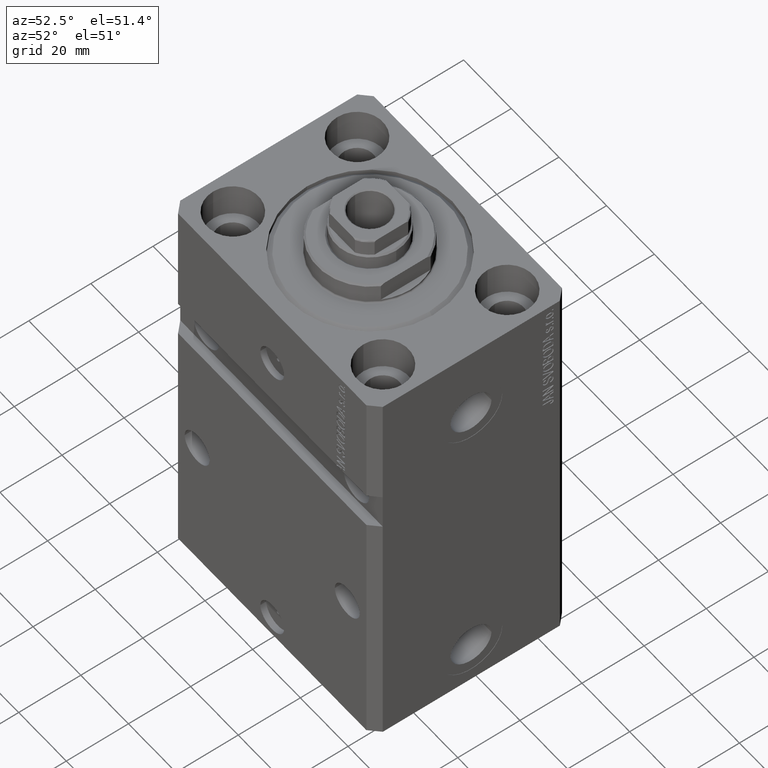
[diagram: clean part render]
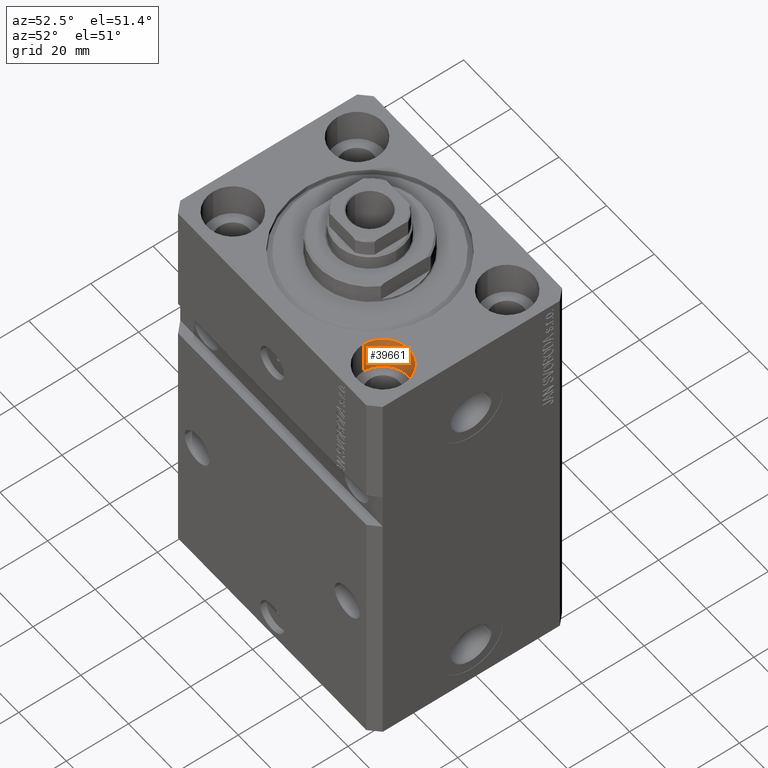
[diagram: same view with one face highlighted and labeled with its STEP entity id]
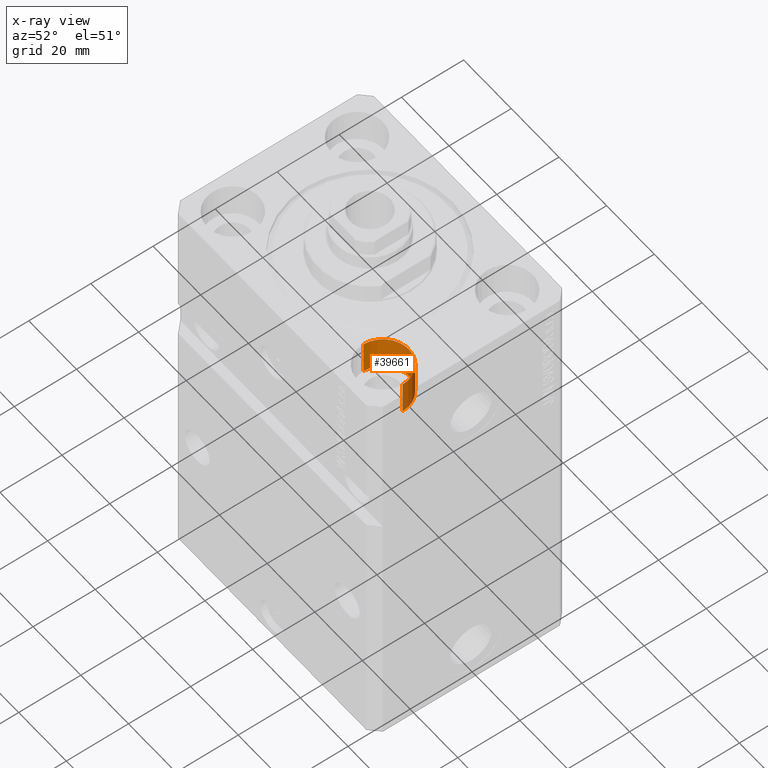
[diagram: x-ray of the same camera — body ghosted, the highlighted face saturated]
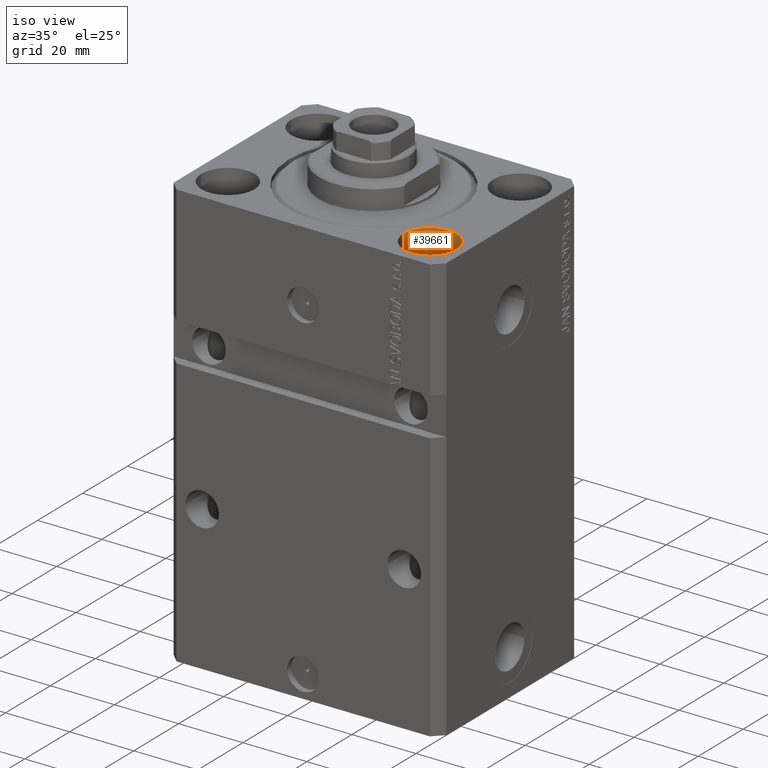
[diagram: same view with one face highlighted and labeled with its STEP entity id]
A machine part, auxiliary view. The second image highlights one B-rep face of the part: STEP entity #39661.
The next image is the same camera in x-ray: the body ghosted, the highlighted face saturated — about 0% of this face is hidden behind the body in this view.
A second angle (iso view) of the same face is appended — the face is thin or edge-on in the first view.
In plain terms, the highlighted cylindrical surface (edge-blend (fillet) strip) has radius 8.25 mm, axis along (0, 0, 1).
Its self-contained STEP definition (entity closure, byte-faithful):
#1889 = EDGE_CURVE ( 'NONE', #38632, #24603, #31823, .T. ) ;
#5409 = ORIENTED_EDGE ( 'NONE', *, *, #37741, .F. ) ;
#6049 = VERTEX_POINT ( 'NONE', #42352 ) ;
#8505 = CARTESIAN_POINT ( 'NONE',  ( 39.74999999999999289, -20.00000000000000000, 0.000000000000000000 ) ) ;
#10451 = CIRCLE ( 'NONE', #37934, 8.249999999999992895 ) ;
#13262 = DIRECTION ( 'NONE',  ( 1.000000000000000000, 0.000000000000000000, 0.000000000000000000 ) ) ;
#13537 = CARTESIAN_POINT ( 'NONE',  ( 23.25000000000000355, -20.00000000000000000, 0.000000000000000000 ) ) ;
#13734 = DIRECTION ( 'NONE',  ( 0.000000000000000000, 0.000000000000000000, 1.000000000000000000 ) ) ;
#17695 = VECTOR ( 'NONE', #37769, 1000.000000000000000 ) ;
#17861 = DIRECTION ( 'NONE',  ( 1.000000000000000000, 0.000000000000000000, 0.000000000000000000 ) ) ;
#18603 = FACE_OUTER_BOUND ( 'NONE', #30399, .T. ) ;
#18839 = DIRECTION ( 'NONE',  ( -0.000000000000000000, -0.000000000000000000, 1.000000000000000000 ) ) ;
#20076 = AXIS2_PLACEMENT_3D ( 'NONE', #32196, #13734, #32912 ) ;
#22942 = VECTOR ( 'NONE', #18839, 1000.000000000000000 ) ;
#24603 = VERTEX_POINT ( 'NONE', #13537 ) ;
#28725 = DIRECTION ( 'NONE',  ( 0.000000000000000000, 0.000000000000000000, 1.000000000000000000 ) ) ;
#29404 = DIRECTION ( 'NONE',  ( -0.000000000000000000, -0.000000000000000000, 1.000000000000000000 ) ) ;
#29415 = LINE ( 'NONE', #33841, #17695 ) ;
#29651 = CARTESIAN_POINT ( 'NONE',  ( 23.25000000000000355, -20.00000000000000000, -11.00000000000000000 ) ) ;
#29658 = CYLINDRICAL_SURFACE ( 'NONE', #44183, 8.249999999999992895 ) ;
#29950 = ORIENTED_EDGE ( 'NONE', *, *, #40578, .T. ) ;
#30217 = ORIENTED_EDGE ( 'NONE', *, *, #38533, .F. ) ;
#30399 = EDGE_LOOP ( 'NONE', ( #30217, #5409, #29950, #45670 ) ) ;
#31823 = CIRCLE ( 'NONE', #20076, 8.249999999999992895 ) ;
#32196 = CARTESIAN_POINT ( 'NONE',  ( 31.50000000000000000, -20.00000000000000000, 0.000000000000000000 ) ) ;
#32912 = DIRECTION ( 'NONE',  ( 1.000000000000000000, 0.000000000000000000, 0.000000000000000000 ) ) ;
#33841 = CARTESIAN_POINT ( 'NONE',  ( 39.74999999999999289, -20.00000000000000000, -11.00000000000000000 ) ) ;
#37741 = EDGE_CURVE ( 'NONE', #6049, #45991, #10451, .T. ) ;
#37769 = DIRECTION ( 'NONE',  ( -0.000000000000000000, -0.000000000000000000, 1.000000000000000000 ) ) ;
#37934 = AXIS2_PLACEMENT_3D ( 'NONE', #47678, #28725, #13262 ) ;
#38533 = EDGE_CURVE ( 'NONE', #45991, #24603, #40460, .T. ) ;
#38632 = VERTEX_POINT ( 'NONE', #8505 ) ;
#39661 = ADVANCED_FACE ( 'NONE', ( #18603 ), #29658, .F. ) ;
#40460 = LINE ( 'NONE', #29651, #22942 ) ;
#40578 = EDGE_CURVE ( 'NONE', #6049, #38632, #29415, .T. ) ;
#42352 = CARTESIAN_POINT ( 'NONE',  ( 39.74999999999999289, -20.00000000000000000, -11.00000000000000000 ) ) ;
#44183 = AXIS2_PLACEMENT_3D ( 'NONE', #44673, #29404, #17861 ) ;
#44673 = CARTESIAN_POINT ( 'NONE',  ( 31.50000000000000000, -20.00000000000000000, -11.00000000000000000 ) ) ;
#45423 = CARTESIAN_POINT ( 'NONE',  ( 23.25000000000000355, -20.00000000000000000, -11.00000000000000000 ) ) ;
#45670 = ORIENTED_EDGE ( 'NONE', *, *, #1889, .T. ) ;
#45991 = VERTEX_POINT ( 'NONE', #45423 ) ;
#47678 = CARTESIAN_POINT ( 'NONE',  ( 31.50000000000000000, -20.00000000000000000, -11.00000000000000000 ) ) ;